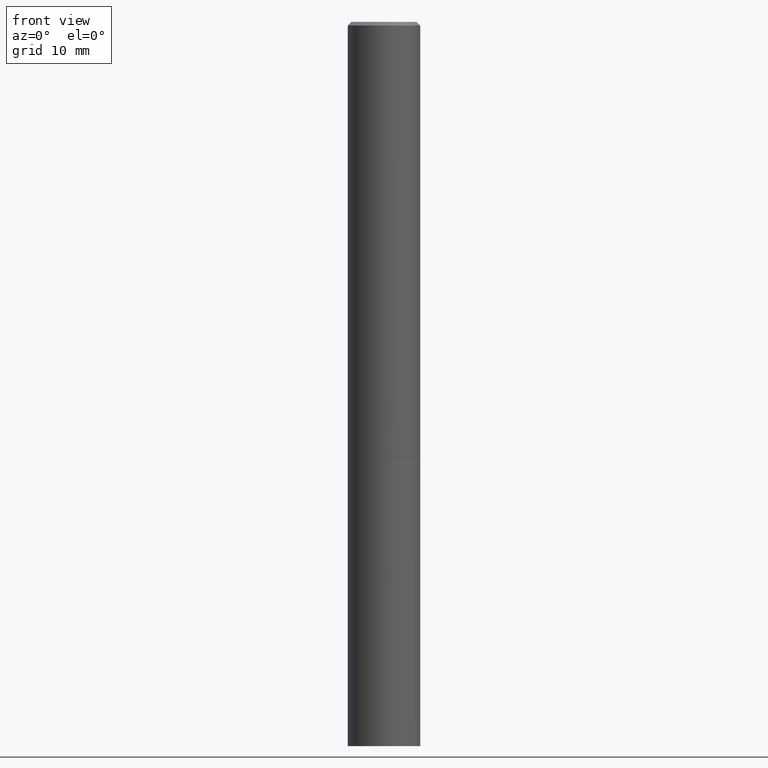
[diagram: clean part render]
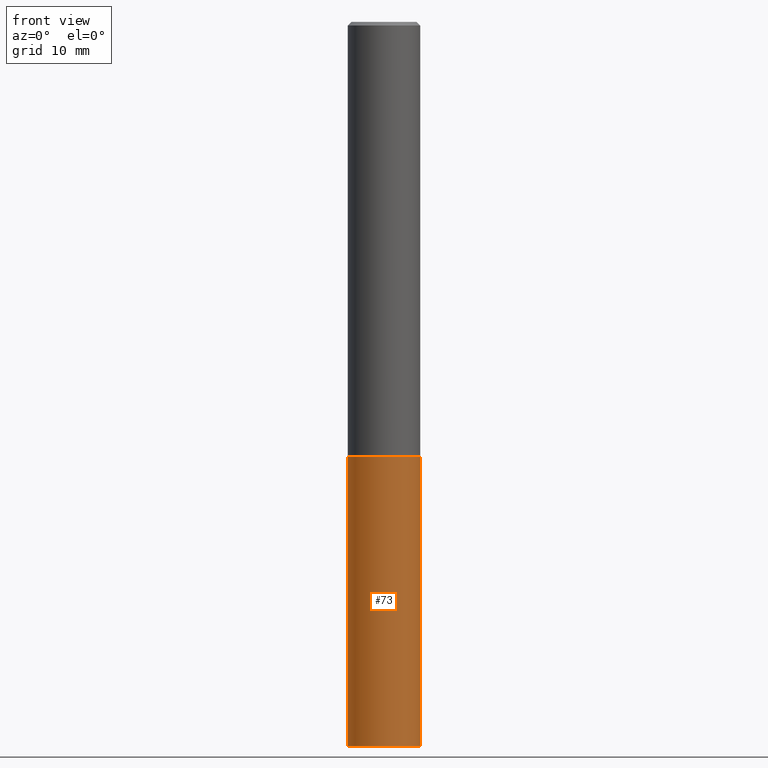
[diagram: same view with one face highlighted and labeled with its STEP entity id]
A machine part, front view. The second image highlights one B-rep face of the part: STEP entity #73.
In plain terms, the highlighted cylindrical surface (edge-blend (fillet) strip) has radius 5 mm, axis along (-0, 0, 1).
Its self-contained STEP definition (entity closure, byte-faithful):
#1 = DIRECTION ( 'NONE',  ( -2.445468806185136877E-29, 3.491481338843145188E-15, 1.000000000000000000 ) ) ;
#24 = CYLINDRICAL_SURFACE ( 'NONE', #253, 0.1968500000000000250 ) ;
#25 = EDGE_CURVE ( 'NONE', #173, #247, #142, .T. ) ;
#32 = EDGE_LOOP ( 'NONE', ( #110, #298, #141, #338 ) ) ;
#38 = AXIS2_PLACEMENT_3D ( 'NONE', #231, #248, #343 ) ;
#49 = FACE_OUTER_BOUND ( 'NONE', #32, .T. ) ;
#52 = CIRCLE ( 'NONE', #38, 0.1968500000000000250 ) ;
#68 = CARTESIAN_POINT ( 'NONE',  ( 5.776686413970529753E-29, -8.247577218615278049E-15, -2.362199999999999633 ) ) ;
#73 = ADVANCED_FACE ( 'NONE', ( #49 ), #24, .T. ) ;
#83 = EDGE_CURVE ( 'NONE', #272, #169, #88, .T. ) ;
#88 = LINE ( 'NONE', #197, #236 ) ;
#110 = ORIENTED_EDGE ( 'NONE', *, *, #25, .F. ) ;
#112 = DIRECTION ( 'NONE',  ( 1.000000000000000000, -6.982962677686265922E-15, 4.876176775795935793E-29 ) ) ;
#132 = CARTESIAN_POINT ( 'NONE',  ( 0.1968500000000000250, -9.622173421717819657E-15, -2.362199999999999633 ) ) ;
#137 = CARTESIAN_POINT ( 'NONE',  ( 0.000000000000000000, 0.000000000000000000, 0.000000000000000000 ) ) ;
#141 = ORIENTED_EDGE ( 'NONE', *, *, #83, .T. ) ;
#142 = LINE ( 'NONE', #251, #290 ) ;
#157 = CARTESIAN_POINT ( 'NONE',  ( -0.1968500000000000250, -9.598066249476613733E-15, -3.937000000000000277 ) ) ;
#168 = CIRCLE ( 'NONE', #226, 0.1968500000000000250 ) ;
#169 = VERTEX_POINT ( 'NONE', #132 ) ;
#173 = VERTEX_POINT ( 'NONE', #157 ) ;
#197 = CARTESIAN_POINT ( 'NONE',  ( 0.1968500000000000250, -1.374596203102541608E-15, 9.598753983154300858E-30 ) ) ;
#201 = DIRECTION ( 'NONE',  ( -2.445468806185136877E-29, 3.491481338843145188E-15, 1.000000000000000000 ) ) ;
#226 = AXIS2_PLACEMENT_3D ( 'NONE', #68, #358, #268 ) ;
#231 = CARTESIAN_POINT ( 'NONE',  ( 9.627810689950883669E-29, -1.374596203102546341E-14, -3.937000000000000277 ) ) ;
#236 = VECTOR ( 'NONE', #1, 39.37007874015748143 ) ;
#244 = EDGE_CURVE ( 'NONE', #247, #169, #168, .T. ) ;
#247 = VERTEX_POINT ( 'NONE', #273 ) ;
#248 = DIRECTION ( 'NONE',  ( -2.445468806185136597E-29, 3.491481338843145583E-15, 1.000000000000000000 ) ) ;
#251 = CARTESIAN_POINT ( 'NONE',  ( -0.1968500000000000250, 1.398703375343757393E-15, -9.682923725166783677E-30 ) ) ;
#253 = AXIS2_PLACEMENT_3D ( 'NONE', #137, #365, #112 ) ;
#268 = DIRECTION ( 'NONE',  ( 1.000000000000000000, -6.982962677686262766E-15, 0.000000000000000000 ) ) ;
#272 = VERTEX_POINT ( 'NONE', #325 ) ;
#273 = CARTESIAN_POINT ( 'NONE',  ( -0.1968500000000000250, -9.598066249476613733E-15, -2.362199999999999633 ) ) ;
#290 = VECTOR ( 'NONE', #201, 39.37007874015748143 ) ;
#298 = ORIENTED_EDGE ( 'NONE', *, *, #330, .T. ) ;
#325 = CARTESIAN_POINT ( 'NONE',  ( 0.1968500000000000250, -1.512055823412800660E-14, -3.937000000000000277 ) ) ;
#330 = EDGE_CURVE ( 'NONE', #173, #272, #52, .T. ) ;
#338 = ORIENTED_EDGE ( 'NONE', *, *, #244, .F. ) ;
#343 = DIRECTION ( 'NONE',  ( 1.000000000000000000, -6.982962677686267499E-15, 0.000000000000000000 ) ) ;
#358 = DIRECTION ( 'NONE',  ( -2.445468806185136597E-29, 3.491481338843145583E-15, 1.000000000000000000 ) ) ;
#365 = DIRECTION ( 'NONE',  ( -2.445468806185136597E-29, 3.491481338843145583E-15, 1.000000000000000000 ) ) ;